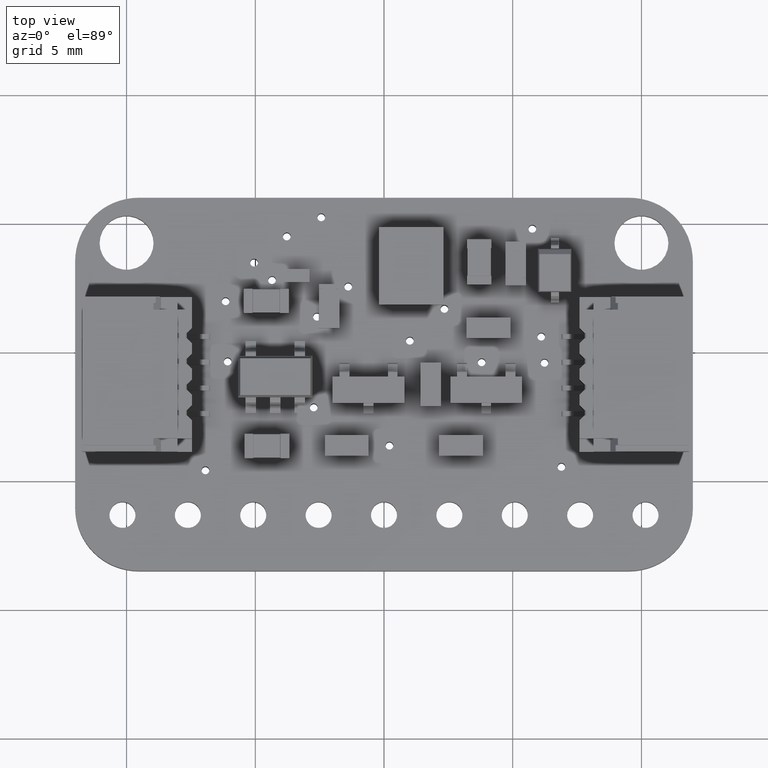
[diagram: clean part render]
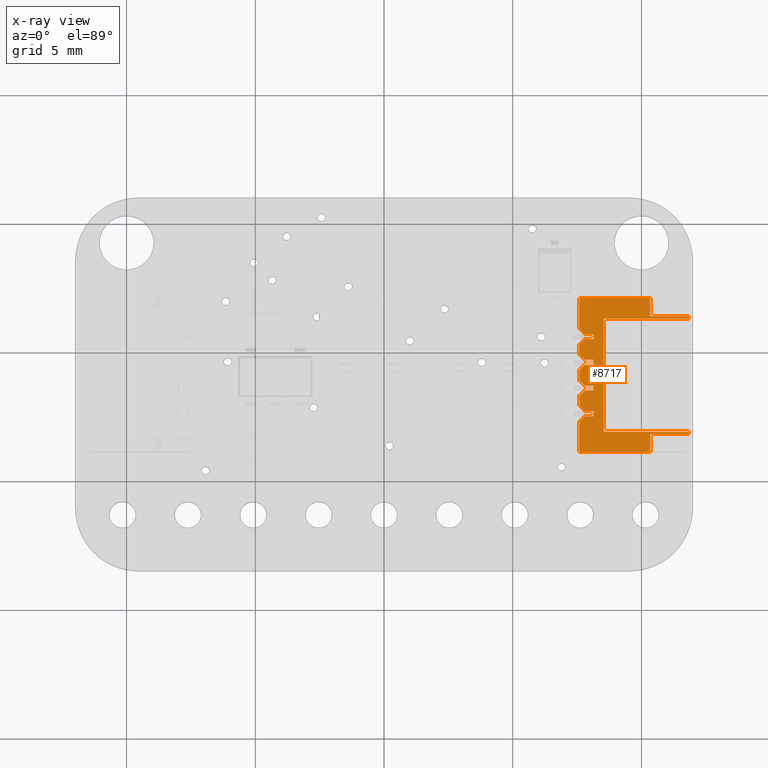
[diagram: x-ray — body ghosted, one internal face saturated and labeled with its STEP entity id]
A machine part, top view, then the same camera in x-ray: the body is ghosted and one INTERNAL B-rep face — a face not visible from any outside direction — is saturated and labeled: STEP entity #8717.
In plain terms, the highlighted planar face has unit normal (0, -0, 1).
Its self-contained STEP definition (entity closure, byte-faithful):
#8199 = VERTEX_POINT('',#8200);
#8200 = CARTESIAN_POINT('',(-2.29,0.47,3.895));
#8206 = EDGE_CURVE('',#8199,#8207,#8209,.T.);
#8207 = VERTEX_POINT('',#8208);
#8208 = CARTESIAN_POINT('',(-2.2,0.47,3.895));
#8209 = LINE('',#8210,#8211);
#8210 = CARTESIAN_POINT('',(-3.,0.47,3.895));
#8211 = VECTOR('',#8212,1.);
#8212 = DIRECTION('',(1.,-1.355252715607E-16,0.));
#8231 = VERTEX_POINT('',#8232);
#8232 = CARTESIAN_POINT('',(2.2,0.47,3.895));
#8238 = EDGE_CURVE('',#8239,#8231,#8241,.T.);
#8239 = VERTEX_POINT('',#8240);
#8240 = CARTESIAN_POINT('',(2.29,0.47,3.895));
#8241 = LINE('',#8242,#8243);
#8242 = CARTESIAN_POINT('',(3.,0.47,3.895));
#8243 = VECTOR('',#8244,1.);
#8244 = DIRECTION('',(-1.,-1.355252715607E-16,0.));
#8717 = ADVANCED_FACE('',(#8718),#8990,.F.);
#8718 = FACE_BOUND('',#8719,.T.);
#8719 = EDGE_LOOP('',(#8720,#8730,#8738,#8746,#8754,#8762,#8770,#8778,
    #8786,#8794,#8802,#8810,#8818,#8826,#8834,#8842,#8848,#8849,#8857,
    #8865,#8871,#8872,#8880,#8888,#8896,#8904,#8912,#8920,#8928,#8936,
    #8944,#8952,#8960,#8968,#8976,#8984));
#8720 = ORIENTED_EDGE('',*,*,#8721,.F.);
#8721 = EDGE_CURVE('',#8722,#8724,#8726,.T.);
#8722 = VERTEX_POINT('',#8723);
#8723 = CARTESIAN_POINT('',(0.2,0.47,-0.355));
#8724 = VERTEX_POINT('',#8725);
#8725 = CARTESIAN_POINT('',(-0.2,0.47,-0.355));
#8726 = LINE('',#8727,#8728);
#8727 = CARTESIAN_POINT('',(4.,0.47,-0.355));
#8728 = VECTOR('',#8729,1.);
#8729 = DIRECTION('',(-1.,-1.355252715607E-16,7.105427357601E-15));
#8730 = ORIENTED_EDGE('',*,*,#8731,.T.);
#8731 = EDGE_CURVE('',#8722,#8732,#8734,.T.);
#8732 = VERTEX_POINT('',#8733);
#8733 = CARTESIAN_POINT('',(0.4,0.47,-0.155));
#8734 = LINE('',#8735,#8736);
#8735 = CARTESIAN_POINT('',(0.4,0.47,-0.155));
#8736 = VECTOR('',#8737,1.);
#8737 = DIRECTION('',(0.707106781187,9.583083854271E-17,0.707106781187)
  );
#8738 = ORIENTED_EDGE('',*,*,#8739,.F.);
#8739 = EDGE_CURVE('',#8740,#8732,#8742,.T.);
#8740 = VERTEX_POINT('',#8741);
#8741 = CARTESIAN_POINT('',(0.4,0.47,0.195));
#8742 = LINE('',#8743,#8744);
#8743 = CARTESIAN_POINT('',(0.4,0.47,-0.355));
#8744 = VECTOR('',#8745,1.);
#8745 = DIRECTION('',(-7.096596038087E-15,9.856383386232E-17,-1.));
#8746 = ORIENTED_EDGE('',*,*,#8747,.T.);
#8747 = EDGE_CURVE('',#8740,#8748,#8750,.T.);
#8748 = VERTEX_POINT('',#8749);
#8749 = CARTESIAN_POINT('',(0.6,0.47,0.195));
#8750 = LINE('',#8751,#8752);
#8751 = CARTESIAN_POINT('',(0.4,0.47,0.195));
#8752 = VECTOR('',#8753,1.);
#8753 = DIRECTION('',(1.,5.605193857299E-45,-6.982966722219E-15));
#8754 = ORIENTED_EDGE('',*,*,#8755,.T.);
#8755 = EDGE_CURVE('',#8748,#8756,#8758,.T.);
#8756 = VERTEX_POINT('',#8757);
#8757 = CARTESIAN_POINT('',(0.6,0.47,-0.155));
#8758 = LINE('',#8759,#8760);
#8759 = CARTESIAN_POINT('',(0.6,0.47,-0.355));
#8760 = VECTOR('',#8761,1.);
#8761 = DIRECTION('',(-7.096596038087E-15,9.856383386232E-17,-1.));
#8762 = ORIENTED_EDGE('',*,*,#8763,.T.);
#8763 = EDGE_CURVE('',#8756,#8764,#8766,.T.);
#8764 = VERTEX_POINT('',#8765);
#8765 = CARTESIAN_POINT('',(0.8,0.47,-0.355));
#8766 = LINE('',#8767,#8768);
#8767 = CARTESIAN_POINT('',(0.8,0.47,-0.355));
#8768 = VECTOR('',#8769,1.);
#8769 = DIRECTION('',(0.707106781187,9.583083854271E-17,-0.707106781187)
  );
#8770 = ORIENTED_EDGE('',*,*,#8771,.F.);
#8771 = EDGE_CURVE('',#8772,#8764,#8774,.T.);
#8772 = VERTEX_POINT('',#8773);
#8773 = CARTESIAN_POINT('',(1.2,0.47,-0.355));
#8774 = LINE('',#8775,#8776);
#8775 = CARTESIAN_POINT('',(3.,0.47,-0.355));
#8776 = VECTOR('',#8777,1.);
#8777 = DIRECTION('',(-1.,-1.355252715607E-16,7.105427357601E-15));
#8778 = ORIENTED_EDGE('',*,*,#8779,.T.);
#8779 = EDGE_CURVE('',#8772,#8780,#8782,.T.);
#8780 = VERTEX_POINT('',#8781);
#8781 = CARTESIAN_POINT('',(1.4,0.47,-0.155));
#8782 = LINE('',#8783,#8784);
#8783 = CARTESIAN_POINT('',(1.4,0.47,-0.155));
#8784 = VECTOR('',#8785,1.);
#8785 = DIRECTION('',(0.707106781187,9.583083854271E-17,0.707106781187)
  );
#8786 = ORIENTED_EDGE('',*,*,#8787,.F.);
#8787 = EDGE_CURVE('',#8788,#8780,#8790,.T.);
#8788 = VERTEX_POINT('',#8789);
#8789 = CARTESIAN_POINT('',(1.4,0.47,0.195));
#8790 = LINE('',#8791,#8792);
#8791 = CARTESIAN_POINT('',(1.4,0.47,-0.355));
#8792 = VECTOR('',#8793,1.);
#8793 = DIRECTION('',(-7.096596038087E-15,9.856383386232E-17,-1.));
#8794 = ORIENTED_EDGE('',*,*,#8795,.T.);
#8795 = EDGE_CURVE('',#8788,#8796,#8798,.T.);
#8796 = VERTEX_POINT('',#8797);
#8797 = CARTESIAN_POINT('',(1.6,0.47,0.195));
#8798 = LINE('',#8799,#8800);
#8799 = CARTESIAN_POINT('',(1.4,0.47,0.195));
#8800 = VECTOR('',#8801,1.);
#8801 = DIRECTION('',(1.,5.605193857299E-45,-6.982966722219E-15));
#8802 = ORIENTED_EDGE('',*,*,#8803,.T.);
#8803 = EDGE_CURVE('',#8796,#8804,#8806,.T.);
#8804 = VERTEX_POINT('',#8805);
#8805 = CARTESIAN_POINT('',(1.6,0.47,-0.155));
#8806 = LINE('',#8807,#8808);
#8807 = CARTESIAN_POINT('',(1.6,0.47,-0.355));
#8808 = VECTOR('',#8809,1.);
#8809 = DIRECTION('',(-7.096596038087E-15,9.856383386232E-17,-1.));
#8810 = ORIENTED_EDGE('',*,*,#8811,.T.);
#8811 = EDGE_CURVE('',#8804,#8812,#8814,.T.);
#8812 = VERTEX_POINT('',#8813);
#8813 = CARTESIAN_POINT('',(1.8,0.47,-0.355));
#8814 = LINE('',#8815,#8816);
#8815 = CARTESIAN_POINT('',(1.8,0.47,-0.355));
#8816 = VECTOR('',#8817,1.);
#8817 = DIRECTION('',(0.707106781187,9.583083854271E-17,-0.707106781187)
  );
#8818 = ORIENTED_EDGE('',*,*,#8819,.F.);
#8819 = EDGE_CURVE('',#8820,#8812,#8822,.T.);
#8820 = VERTEX_POINT('',#8821);
#8821 = CARTESIAN_POINT('',(3.,0.47,-0.355));
#8822 = LINE('',#8823,#8824);
#8823 = CARTESIAN_POINT('',(3.,0.47,-0.355));
#8824 = VECTOR('',#8825,1.);
#8825 = DIRECTION('',(-1.,-1.355252715607E-16,7.105427357601E-15));
#8826 = ORIENTED_EDGE('',*,*,#8827,.T.);
#8827 = EDGE_CURVE('',#8820,#8828,#8830,.T.);
#8828 = VERTEX_POINT('',#8829);
#8829 = CARTESIAN_POINT('',(3.,0.47,2.395));
#8830 = LINE('',#8831,#8832);
#8831 = CARTESIAN_POINT('',(3.,0.47,-1.055));
#8832 = VECTOR('',#8833,1.);
#8833 = DIRECTION('',(-0.,-0.,1.));
#8834 = ORIENTED_EDGE('',*,*,#8835,.F.);
#8835 = EDGE_CURVE('',#8836,#8828,#8838,.T.);
#8836 = VERTEX_POINT('',#8837);
#8837 = CARTESIAN_POINT('',(2.29,0.47,2.395));
#8838 = LINE('',#8839,#8840);
#8839 = CARTESIAN_POINT('',(2.5,0.47,2.395));
#8840 = VECTOR('',#8841,1.);
#8841 = DIRECTION('',(1.,1.355252715607E-16,-6.982966722219E-15));
#8842 = ORIENTED_EDGE('',*,*,#8843,.T.);
#8843 = EDGE_CURVE('',#8836,#8239,#8844,.T.);
#8844 = LINE('',#8845,#8846);
#8845 = CARTESIAN_POINT('',(2.29,0.47,2.395));
#8846 = VECTOR('',#8847,1.);
#8847 = DIRECTION('',(-0.,-0.,1.));
#8848 = ORIENTED_EDGE('',*,*,#8238,.T.);
#8849 = ORIENTED_EDGE('',*,*,#8850,.F.);
#8850 = EDGE_CURVE('',#8851,#8231,#8853,.T.);
#8851 = VERTEX_POINT('',#8852);
#8852 = CARTESIAN_POINT('',(2.2,0.47,0.585));
#8853 = LINE('',#8854,#8855);
#8854 = CARTESIAN_POINT('',(2.2,0.47,-1.055));
#8855 = VECTOR('',#8856,1.);
#8856 = DIRECTION('',(-0.,-0.,1.));
#8857 = ORIENTED_EDGE('',*,*,#8858,.F.);
#8858 = EDGE_CURVE('',#8859,#8851,#8861,.T.);
#8859 = VERTEX_POINT('',#8860);
#8860 = CARTESIAN_POINT('',(-2.2,0.47,0.585));
#8861 = LINE('',#8862,#8863);
#8862 = CARTESIAN_POINT('',(-3.,0.47,0.585));
#8863 = VECTOR('',#8864,1.);
#8864 = DIRECTION('',(1.,-0.,-0.));
#8865 = ORIENTED_EDGE('',*,*,#8866,.T.);
#8866 = EDGE_CURVE('',#8859,#8207,#8867,.T.);
#8867 = LINE('',#8868,#8869);
#8868 = CARTESIAN_POINT('',(-2.2,0.47,-1.055));
#8869 = VECTOR('',#8870,1.);
#8870 = DIRECTION('',(-0.,-0.,1.));
#8871 = ORIENTED_EDGE('',*,*,#8206,.F.);
#8872 = ORIENTED_EDGE('',*,*,#8873,.F.);
#8873 = EDGE_CURVE('',#8874,#8199,#8876,.T.);
#8874 = VERTEX_POINT('',#8875);
#8875 = CARTESIAN_POINT('',(-2.29,0.47,2.395));
#8876 = LINE('',#8877,#8878);
#8877 = CARTESIAN_POINT('',(-2.29,0.47,2.395));
#8878 = VECTOR('',#8879,1.);
#8879 = DIRECTION('',(-0.,-0.,1.));
#8880 = ORIENTED_EDGE('',*,*,#8881,.F.);
#8881 = EDGE_CURVE('',#8882,#8874,#8884,.T.);
#8882 = VERTEX_POINT('',#8883);
#8883 = CARTESIAN_POINT('',(-3.,0.47,2.395));
#8884 = LINE('',#8885,#8886);
#8885 = CARTESIAN_POINT('',(-2.5,0.47,2.395));
#8886 = VECTOR('',#8887,1.);
#8887 = DIRECTION('',(1.,-1.355252715607E-16,-6.982966722219E-15));
#8888 = ORIENTED_EDGE('',*,*,#8889,.F.);
#8889 = EDGE_CURVE('',#8890,#8882,#8892,.T.);
#8890 = VERTEX_POINT('',#8891);
#8891 = CARTESIAN_POINT('',(-3.,0.47,-0.355));
#8892 = LINE('',#8893,#8894);
#8893 = CARTESIAN_POINT('',(-3.,0.47,-1.055));
#8894 = VECTOR('',#8895,1.);
#8895 = DIRECTION('',(-0.,-0.,1.));
#8896 = ORIENTED_EDGE('',*,*,#8897,.F.);
#8897 = EDGE_CURVE('',#8898,#8890,#8900,.T.);
#8898 = VERTEX_POINT('',#8899);
#8899 = CARTESIAN_POINT('',(-1.8,0.47,-0.355));
#8900 = LINE('',#8901,#8902);
#8901 = CARTESIAN_POINT('',(4.,0.47,-0.355));
#8902 = VECTOR('',#8903,1.);
#8903 = DIRECTION('',(-1.,-1.355252715607E-16,7.105427357601E-15));
#8904 = ORIENTED_EDGE('',*,*,#8905,.T.);
#8905 = EDGE_CURVE('',#8898,#8906,#8908,.T.);
#8906 = VERTEX_POINT('',#8907);
#8907 = CARTESIAN_POINT('',(-1.6,0.47,-0.155));
#8908 = LINE('',#8909,#8910);
#8909 = CARTESIAN_POINT('',(-1.6,0.47,-0.155));
#8910 = VECTOR('',#8911,1.);
#8911 = DIRECTION('',(0.707106781187,9.583083854271E-17,0.707106781187)
  );
#8912 = ORIENTED_EDGE('',*,*,#8913,.F.);
#8913 = EDGE_CURVE('',#8914,#8906,#8916,.T.);
#8914 = VERTEX_POINT('',#8915);
#8915 = CARTESIAN_POINT('',(-1.6,0.47,0.195));
#8916 = LINE('',#8917,#8918);
#8917 = CARTESIAN_POINT('',(-1.6,0.47,-0.355));
#8918 = VECTOR('',#8919,1.);
#8919 = DIRECTION('',(-7.096596038087E-15,9.856383386232E-17,-1.));
#8920 = ORIENTED_EDGE('',*,*,#8921,.T.);
#8921 = EDGE_CURVE('',#8914,#8922,#8924,.T.);
#8922 = VERTEX_POINT('',#8923);
#8923 = CARTESIAN_POINT('',(-1.4,0.47,0.195));
#8924 = LINE('',#8925,#8926);
#8925 = CARTESIAN_POINT('',(-1.6,0.47,0.195));
#8926 = VECTOR('',#8927,1.);
#8927 = DIRECTION('',(1.,5.605193857299E-45,-6.982966722219E-15));
#8928 = ORIENTED_EDGE('',*,*,#8929,.T.);
#8929 = EDGE_CURVE('',#8922,#8930,#8932,.T.);
#8930 = VERTEX_POINT('',#8931);
#8931 = CARTESIAN_POINT('',(-1.4,0.47,-0.155));
#8932 = LINE('',#8933,#8934);
#8933 = CARTESIAN_POINT('',(-1.4,0.47,-0.355));
#8934 = VECTOR('',#8935,1.);
#8935 = DIRECTION('',(-7.096596038087E-15,9.856383386232E-17,-1.));
#8936 = ORIENTED_EDGE('',*,*,#8937,.T.);
#8937 = EDGE_CURVE('',#8930,#8938,#8940,.T.);
#8938 = VERTEX_POINT('',#8939);
#8939 = CARTESIAN_POINT('',(-1.2,0.47,-0.355));
#8940 = LINE('',#8941,#8942);
#8941 = CARTESIAN_POINT('',(-1.2,0.47,-0.355));
#8942 = VECTOR('',#8943,1.);
#8943 = DIRECTION('',(0.707106781187,9.583083854271E-17,-0.707106781187)
  );
#8944 = ORIENTED_EDGE('',*,*,#8945,.F.);
#8945 = EDGE_CURVE('',#8946,#8938,#8948,.T.);
#8946 = VERTEX_POINT('',#8947);
#8947 = CARTESIAN_POINT('',(-0.8,0.47,-0.355));
#8948 = LINE('',#8949,#8950);
#8949 = CARTESIAN_POINT('',(4.,0.47,-0.355));
#8950 = VECTOR('',#8951,1.);
#8951 = DIRECTION('',(-1.,-1.355252715607E-16,7.105427357601E-15));
#8952 = ORIENTED_EDGE('',*,*,#8953,.T.);
#8953 = EDGE_CURVE('',#8946,#8954,#8956,.T.);
#8954 = VERTEX_POINT('',#8955);
#8955 = CARTESIAN_POINT('',(-0.6,0.47,-0.155));
#8956 = LINE('',#8957,#8958);
#8957 = CARTESIAN_POINT('',(-0.6,0.47,-0.155));
#8958 = VECTOR('',#8959,1.);
#8959 = DIRECTION('',(0.707106781187,9.583083854271E-17,0.707106781187)
  );
#8960 = ORIENTED_EDGE('',*,*,#8961,.F.);
#8961 = EDGE_CURVE('',#8962,#8954,#8964,.T.);
#8962 = VERTEX_POINT('',#8963);
#8963 = CARTESIAN_POINT('',(-0.6,0.47,0.195));
#8964 = LINE('',#8965,#8966);
#8965 = CARTESIAN_POINT('',(-0.6,0.47,-0.355));
#8966 = VECTOR('',#8967,1.);
#8967 = DIRECTION('',(-7.096596038087E-15,9.856383386232E-17,-1.));
#8968 = ORIENTED_EDGE('',*,*,#8969,.T.);
#8969 = EDGE_CURVE('',#8962,#8970,#8972,.T.);
#8970 = VERTEX_POINT('',#8971);
#8971 = CARTESIAN_POINT('',(-0.4,0.47,0.195));
#8972 = LINE('',#8973,#8974);
#8973 = CARTESIAN_POINT('',(-0.6,0.47,0.195));
#8974 = VECTOR('',#8975,1.);
#8975 = DIRECTION('',(1.,5.605193857299E-45,-6.982966722219E-15));
#8976 = ORIENTED_EDGE('',*,*,#8977,.T.);
#8977 = EDGE_CURVE('',#8970,#8978,#8980,.T.);
#8978 = VERTEX_POINT('',#8979);
#8979 = CARTESIAN_POINT('',(-0.4,0.47,-0.155));
#8980 = LINE('',#8981,#8982);
#8981 = CARTESIAN_POINT('',(-0.4,0.47,-0.355));
#8982 = VECTOR('',#8983,1.);
#8983 = DIRECTION('',(-7.096596038087E-15,9.856383386232E-17,-1.));
#8984 = ORIENTED_EDGE('',*,*,#8985,.T.);
#8985 = EDGE_CURVE('',#8978,#8724,#8986,.T.);
#8986 = LINE('',#8987,#8988);
#8987 = CARTESIAN_POINT('',(-0.2,0.47,-0.355));
#8988 = VECTOR('',#8989,1.);
#8989 = DIRECTION('',(0.707106781187,9.583083854271E-17,-0.707106781187)
  );
#8990 = PLANE('',#8991);
#8991 = AXIS2_PLACEMENT_3D('',#8992,#8993,#8994);
#8992 = CARTESIAN_POINT('',(4.,0.47,-1.055));
#8993 = DIRECTION('',(-1.355252715607E-16,1.,0.));
#8994 = DIRECTION('',(-1.,-1.355252715607E-16,0.));